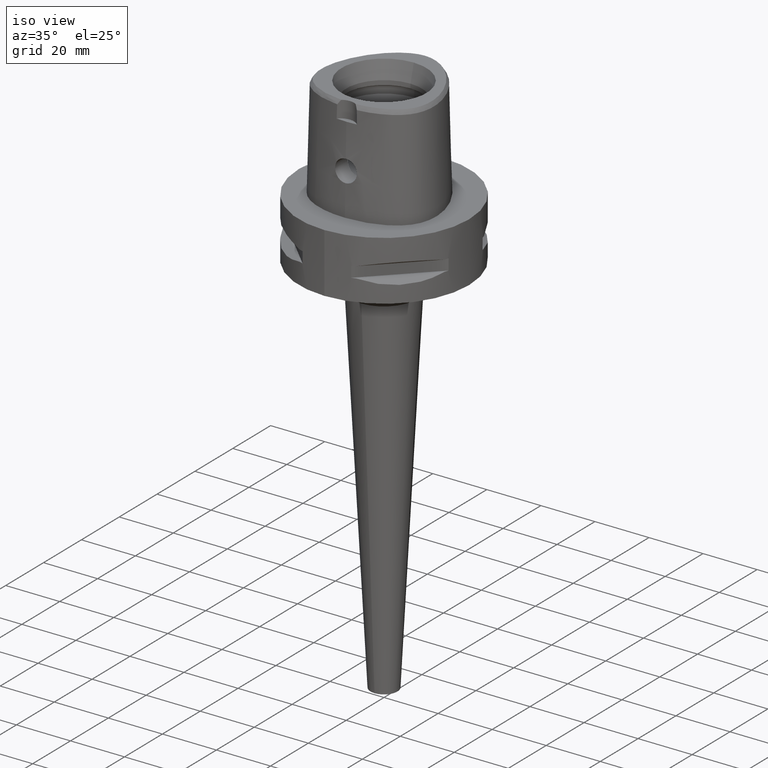
[diagram: clean part render]
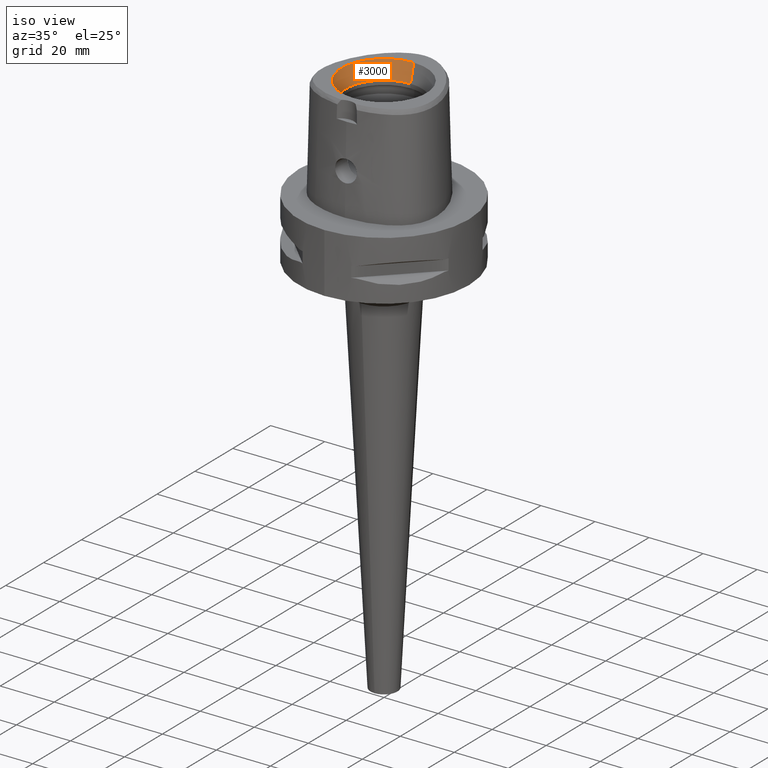
[diagram: same view with one face highlighted and labeled with its STEP entity id]
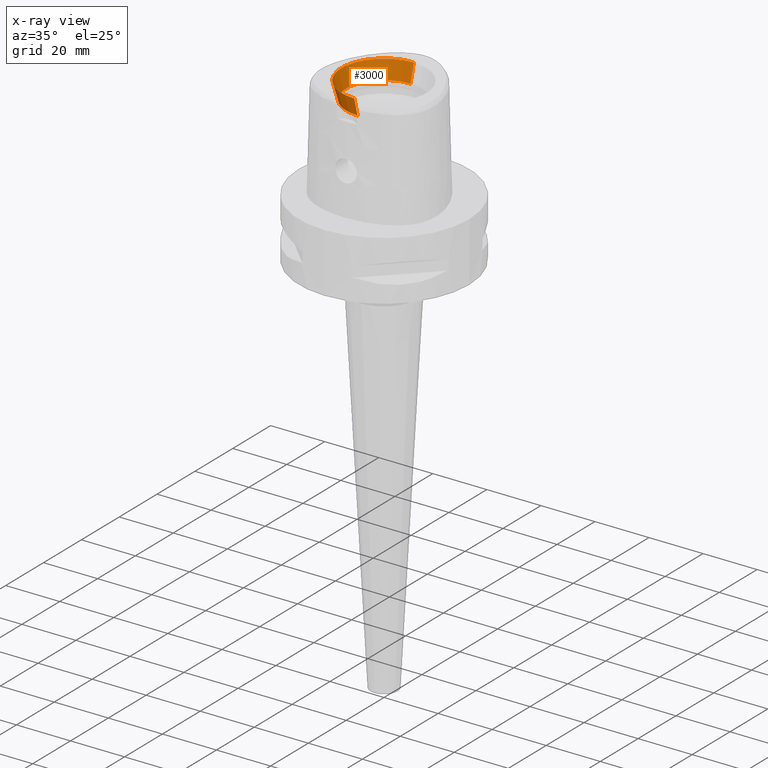
[diagram: x-ray of the same camera — body ghosted, the highlighted face saturated]
A machine part, iso view. The second image highlights one B-rep face of the part: STEP entity #3000.
The next image is the same camera in x-ray: the body ghosted, the highlighted face saturated — about 0% of this face is hidden behind the body in this view.
In plain terms, the highlighted conical surface has half-angle 15 deg.
Its self-contained STEP definition (entity closure, byte-faithful):
#112=CARTESIAN_POINT('',(0.E0,0.E0,3.8E1));
#113=DIRECTION('',(0.E0,0.E0,1.E0));
#114=DIRECTION('',(0.E0,1.E0,0.E0));
#115=AXIS2_PLACEMENT_3D('',#112,#113,#114);
#1102=CARTESIAN_POINT('',(0.E0,0.E0,3.16E1));
#1103=DIRECTION('',(0.E0,0.E0,1.E0));
#1104=DIRECTION('',(0.E0,1.E0,0.E0));
#1105=AXIS2_PLACEMENT_3D('',#1102,#1103,#1104);
#1110=DIRECTION('',(0.E0,-2.588190451026E-1,9.659258262891E-1));
#1111=VECTOR('',#1110,6.625767554625E0);
#1112=CARTESIAN_POINT('',(0.E0,-1.4E1,3.16E1));
#1113=LINE('',#1112,#1111);
#1125=DIRECTION('',(0.E0,2.588190451026E-1,9.659258262891E-1));
#1126=VECTOR('',#1125,6.625767554625E0);
#1127=CARTESIAN_POINT('',(0.E0,1.4E1,3.16E1));
#1128=LINE('',#1127,#1126);
#1439=CARTESIAN_POINT('',(0.E0,1.571487483156E1,3.8E1));
#1440=CARTESIAN_POINT('',(0.E0,-1.571487483156E1,3.8E1));
#1441=VERTEX_POINT('',#1439);
#1442=VERTEX_POINT('',#1440);
#1591=CARTESIAN_POINT('',(0.E0,-1.4E1,3.16E1));
#1592=VERTEX_POINT('',#1591);
#1593=CARTESIAN_POINT('',(0.E0,1.4E1,3.16E1));
#1594=VERTEX_POINT('',#1593);
#2987=CARTESIAN_POINT('',(0.E0,0.E0,3.48E1));
#2988=DIRECTION('',(0.E0,0.E0,1.E0));
#2989=DIRECTION('',(0.E0,1.E0,0.E0));
#2990=AXIS2_PLACEMENT_3D('',#2987,#2988,#2989);
#2991=CONICAL_SURFACE('',#2990,1.485743741578E1,1.5E1);
#2992=ORIENTED_EDGE('',*,*,#1610,.F.);
#2994=ORIENTED_EDGE('',*,*,#2993,.F.);
#2995=ORIENTED_EDGE('',*,*,#2980,.T.);
#2997=ORIENTED_EDGE('',*,*,#2996,.T.);
#2998=EDGE_LOOP('',(#2992,#2994,#2995,#2997));
#2999=FACE_OUTER_BOUND('',#2998,.F.);
#116=CIRCLE('',#115,1.571487483156E1);
#1106=CIRCLE('',#1105,1.4E1);
#1610=EDGE_CURVE('',#1441,#1442,#116,.T.);
#2980=EDGE_CURVE('',#1594,#1592,#1106,.T.);
#2993=EDGE_CURVE('',#1594,#1441,#1128,.T.);
#2996=EDGE_CURVE('',#1592,#1442,#1113,.T.);
#3000=ADVANCED_FACE('',(#2999),#2991,.F.);